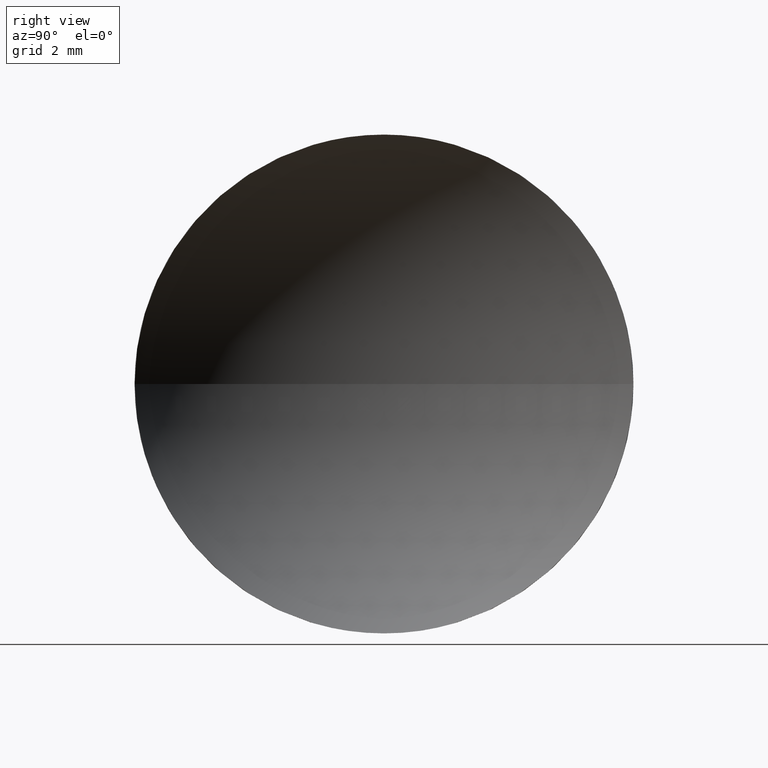
[diagram: clean part render]
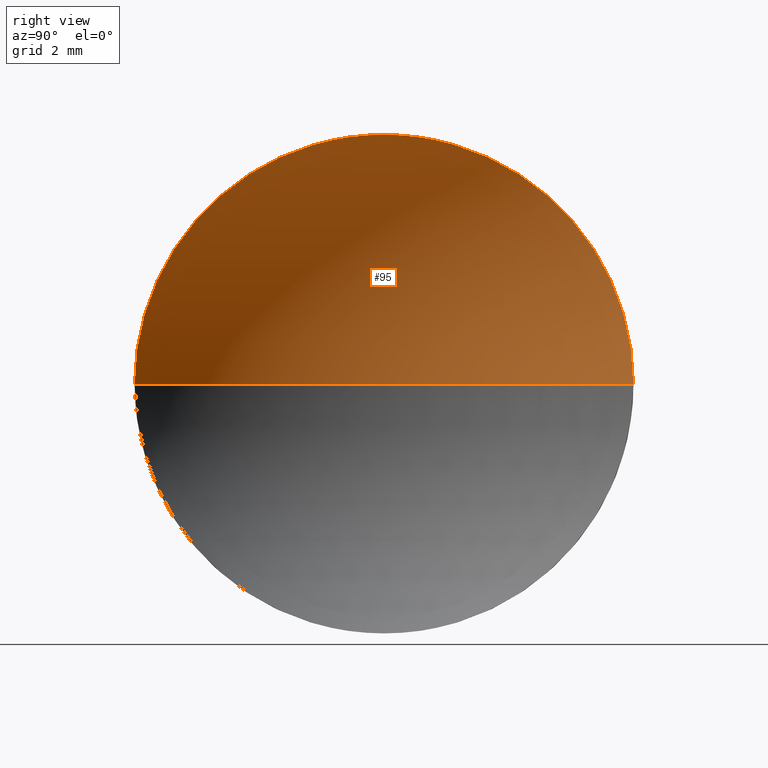
[diagram: same view with one face highlighted and labeled with its STEP entity id]
A machine part, right view. The second image highlights one B-rep face of the part: STEP entity #95.
In plain terms, the highlighted spherical surface has radius 6.4593 mm.
Its self-contained STEP definition (entity closure, byte-faithful):
#5 = AXIS2_PLACEMENT_3D ( 'NONE', #88, #160, #28 ) ;
#20 = AXIS2_PLACEMENT_3D ( 'NONE', #104, #117, #71 ) ;
#22 = VERTEX_POINT ( 'NONE', #83 ) ;
#24 = DIRECTION ( 'NONE',  ( -1.000000000000000000, -0.0000000000000000000, -0.0000000000000000000 ) ) ;
#28 = DIRECTION ( 'NONE',  ( 0.0000000000000000000, -1.000000000000000000, -1.224646799147353000E-016 ) ) ;
#30 = DIRECTION ( 'NONE',  ( -1.000000000000000000, -0.0000000000000000000, -0.0000000000000000000 ) ) ;
#32 = CIRCLE ( 'NONE', #56, 5.000000000000000900 ) ;
#33 = SPHERICAL_SURFACE ( 'NONE', #80, 6.459261603375526100 ) ;
#37 = DIRECTION ( 'NONE',  ( 0.0000000000000000000, 0.0000000000000000000, 1.000000000000000000 ) ) ;
#45 = EDGE_CURVE ( 'NONE', #22, #123, #122, .T. ) ;
#51 = CARTESIAN_POINT ( 'NONE',  ( 48.18958549791029400, 31.08904114919495900, 6.123233995736765300E-016 ) ) ;
#55 = CARTESIAN_POINT ( 'NONE',  ( 45.81958549791029600, 26.08904114919495900, 0.0000000000000000000 ) ) ;
#56 = AXIS2_PLACEMENT_3D ( 'NONE', #174, #30, #135 ) ;
#58 = VERTEX_POINT ( 'NONE', #51 ) ;
#71 = DIRECTION ( 'NONE',  ( -1.000000000000000000, 0.0000000000000000000, 0.0000000000000000000 ) ) ;
#80 = AXIS2_PLACEMENT_3D ( 'NONE', #136, #37, #150 ) ;
#83 = CARTESIAN_POINT ( 'NONE',  ( 48.18958549791029400, 21.08904114919495900, 0.0000000000000000000 ) ) ;
#88 = CARTESIAN_POINT ( 'NONE',  ( 52.27884710128582700, 26.08904114919495900, 0.0000000000000000000 ) ) ;
#89 = CIRCLE ( 'NONE', #20, 6.459261603375524400 ) ;
#95 = ADVANCED_FACE ( 'NONE', ( #140 ), #33, .F. ) ;
#100 = VERTEX_POINT ( 'NONE', #55 ) ;
#104 = CARTESIAN_POINT ( 'NONE',  ( 52.27884710128582700, 26.08904114919495900, 0.0000000000000000000 ) ) ;
#110 = EDGE_CURVE ( 'NONE', #58, #100, #114, .T. ) ;
#114 = CIRCLE ( 'NONE', #5, 6.459261603375527900 ) ;
#117 = DIRECTION ( 'NONE',  ( 0.0000000000000000000, 0.0000000000000000000, -1.000000000000000000 ) ) ;
#119 = AXIS2_PLACEMENT_3D ( 'NONE', #156, #24, #159 ) ;
#122 = CIRCLE ( 'NONE', #119, 5.000000000000000900 ) ;
#123 = VERTEX_POINT ( 'NONE', #130 ) ;
#125 = EDGE_CURVE ( 'NONE', #22, #100, #89, .T. ) ;
#128 = ORIENTED_EDGE ( 'NONE', *, *, #125, .T. ) ;
#130 = CARTESIAN_POINT ( 'NONE',  ( 48.18958549791029400, 26.08904114919495900, 5.000000000000000900 ) ) ;
#135 = DIRECTION ( 'NONE',  ( 0.0000000000000000000, 0.0000000000000000000, 1.000000000000000000 ) ) ;
#136 = CARTESIAN_POINT ( 'NONE',  ( 52.27884710128582700, 26.08904114919495900, 0.0000000000000000000 ) ) ;
#139 = EDGE_CURVE ( 'NONE', #123, #58, #32, .T. ) ;
#140 = FACE_OUTER_BOUND ( 'NONE', #183, .T. ) ;
#150 = DIRECTION ( 'NONE',  ( 0.0000000000000000000, -1.000000000000000000, 0.0000000000000000000 ) ) ;
#153 = ORIENTED_EDGE ( 'NONE', *, *, #110, .F. ) ;
#156 = CARTESIAN_POINT ( 'NONE',  ( 48.18958549791029400, 26.08904114919495900, 0.0000000000000000000 ) ) ;
#159 = DIRECTION ( 'NONE',  ( 0.0000000000000000000, 0.0000000000000000000, 1.000000000000000000 ) ) ;
#160 = DIRECTION ( 'NONE',  ( 0.0000000000000000000, -1.224646799147353200E-016, 1.000000000000000000 ) ) ;
#162 = ORIENTED_EDGE ( 'NONE', *, *, #139, .F. ) ;
#172 = ORIENTED_EDGE ( 'NONE', *, *, #45, .F. ) ;
#174 = CARTESIAN_POINT ( 'NONE',  ( 48.18958549791029400, 26.08904114919495900, 0.0000000000000000000 ) ) ;
#183 = EDGE_LOOP ( 'NONE', ( #153, #162, #172, #128 ) ) ;